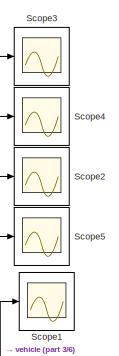
[diagram: root canvas - part 1/6, top right region]
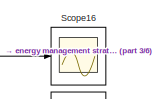
[diagram: root canvas - part 2/6, top center region]
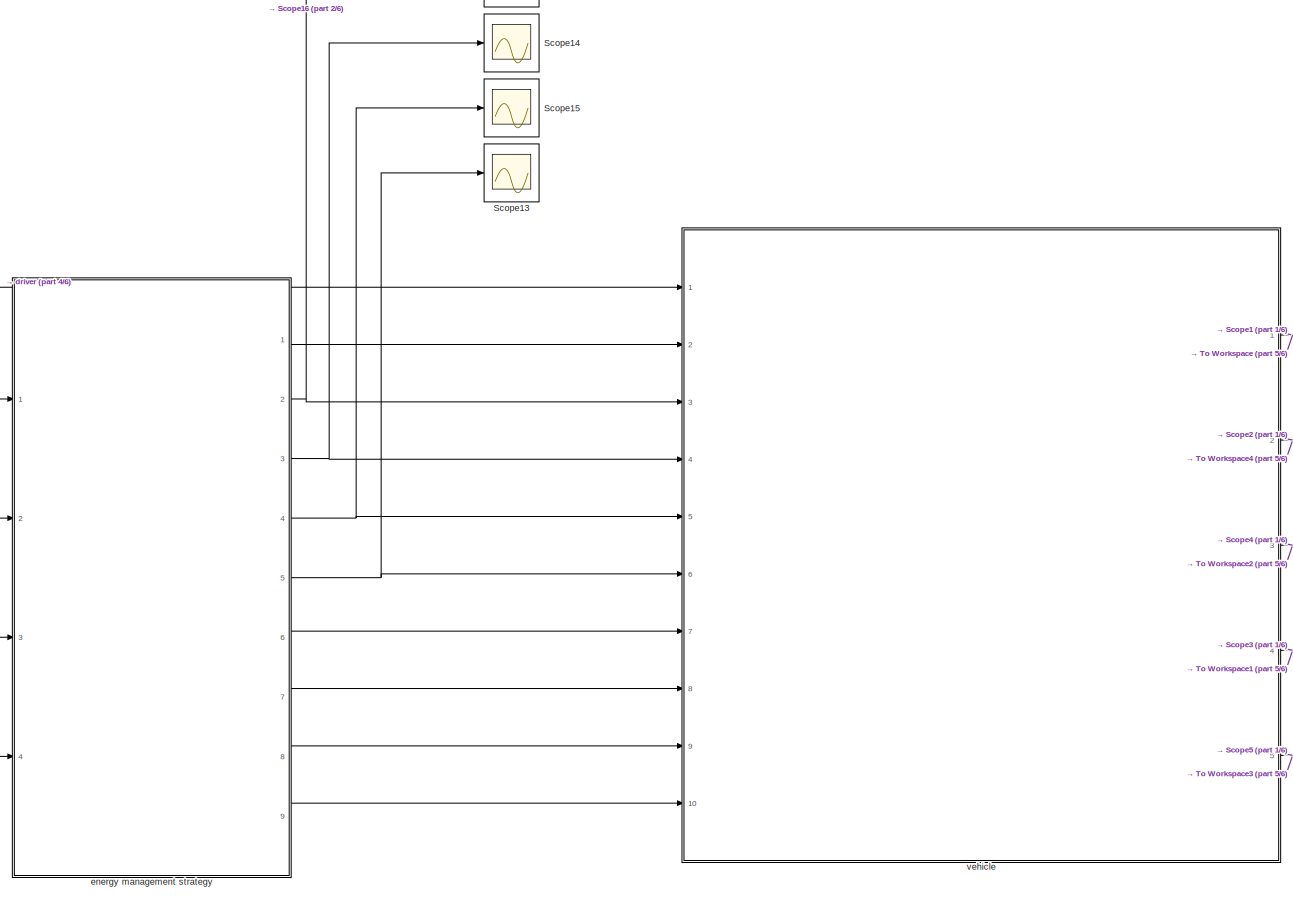
[diagram: root canvas - part 3/6, middle right region]
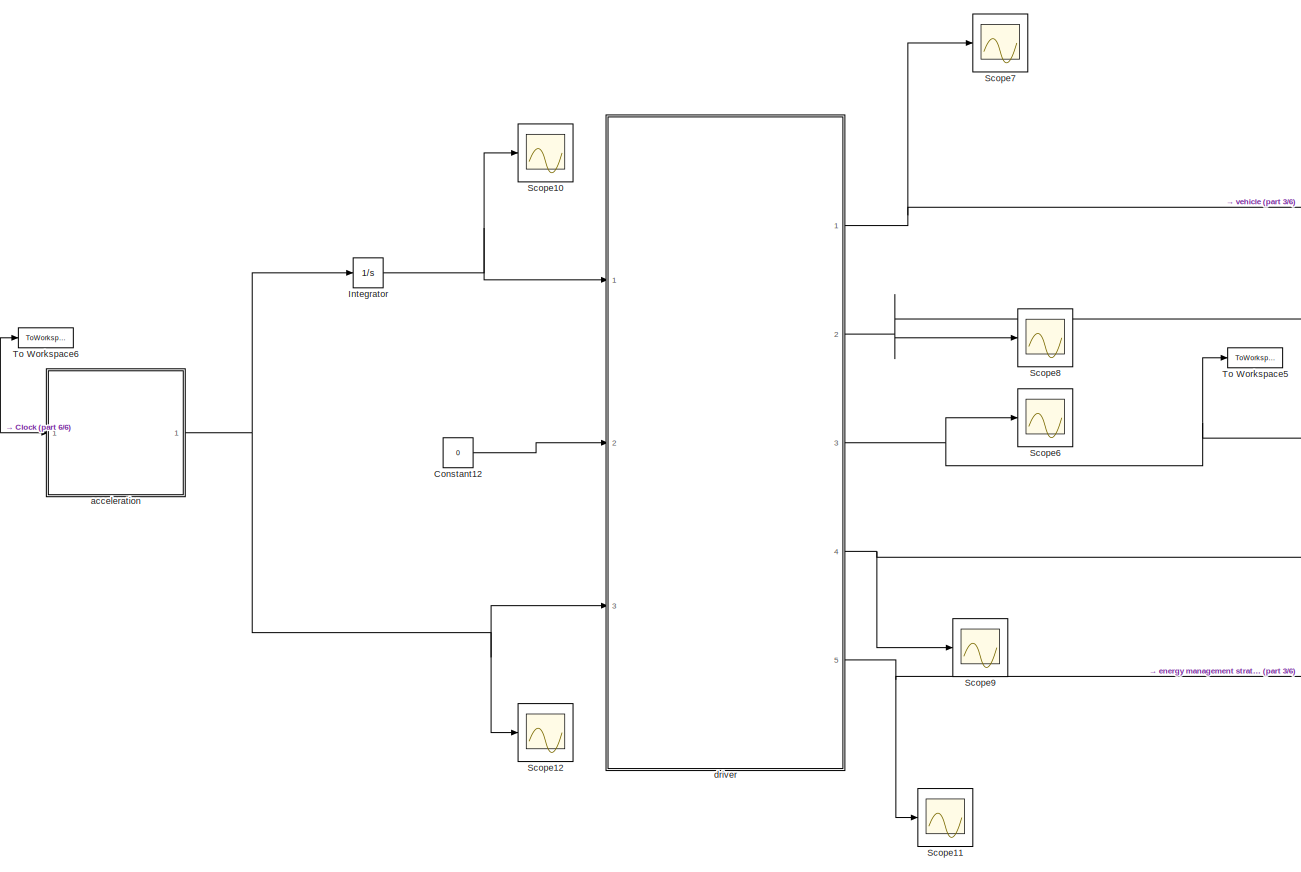
[diagram: root canvas - part 4/6, middle left region]
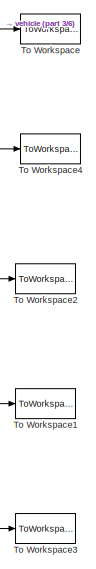
[diagram: root canvas - part 5/6, bottom right region]
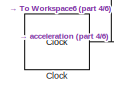
[diagram: root canvas - part 6/6, middle left region]
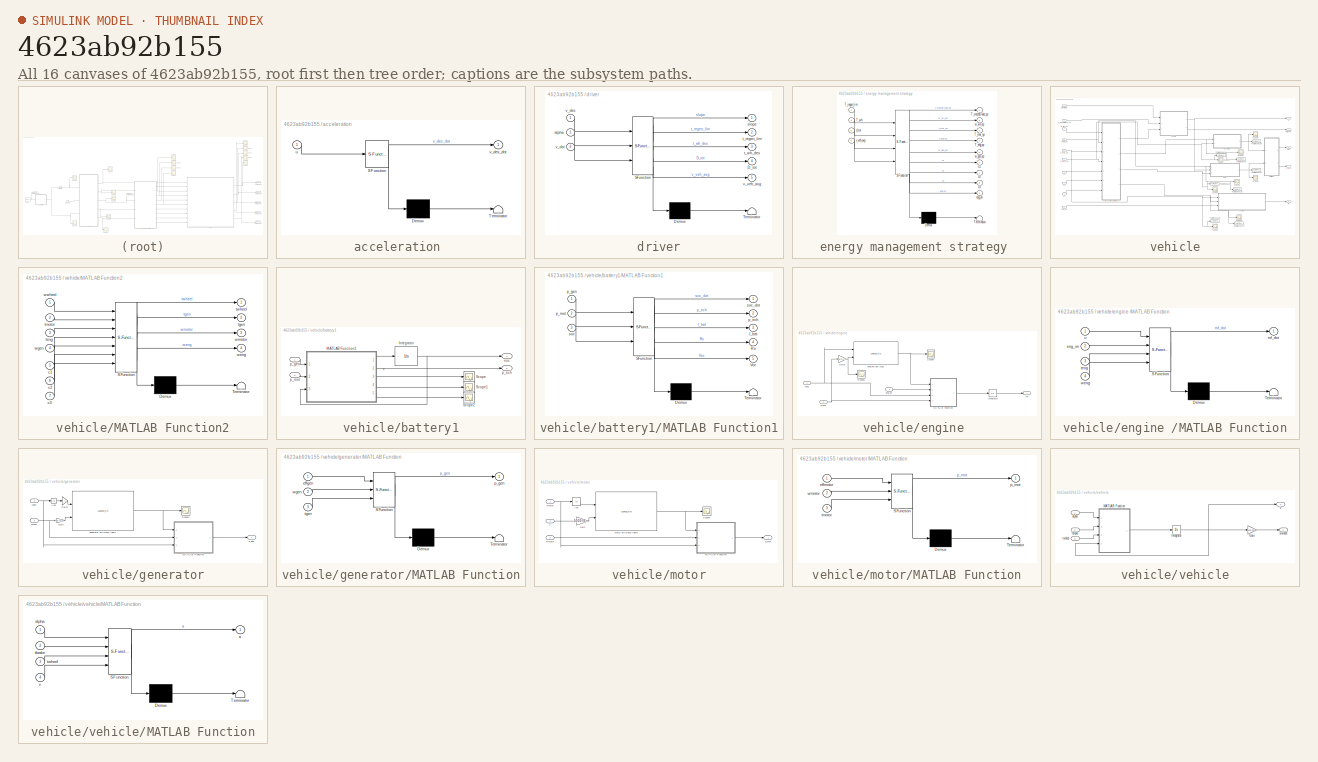
[diagram: thumbnail index - all 16 canvases of the model, root first then tree order]
MODEL slx_4623ab92b155
KIND model
CONFIG AbsTol = auto
CONFIG EnableMultiTasking = off
CONFIG FixedStep = auto
CONFIG MaxStep = auto
CONFIG MinStep = auto
CONFIG RelTol = 1e-3
CONFIG SampleTimeConstraint = Unconstrained
CONFIG Solver = VariableStepAuto
CONFIG SolverName = VariableStepAuto
CONFIG StartTime = 0.0
CONFIG StopTime = 500
BLOCK [Clock] Clock
  Decimation = 1
BLOCK [Constant] Constant12
  Value = 0
BLOCK [Integrator] Integrator
  Ports = [1, 1]
BLOCK [Scope] Scope1
  Floating = off
  NumInputPorts = 1
  Ports = [1]
  ScopeSpecificationString = Simulink.scopes.TimeScopeBlockCfg('CurrentConfiguration', extmgr.ConfigurationSet(extmgr.Configuration('Core','General UI',true),extmgr.Configuration('Core','Source UI',true),extmgr.Configuration('Sources','WiredSimulink',true,'DataLoggingVariableName','ScopeData1'),extmgr.Configuration('Visuals','Time Domain',true,'SerializedDisplays',{struct('MinYLimReal','-6.25001','MaxYLimReal','56.25005','YLa...<+1370ch>
BLOCK [Scope] Scope10
  Floating = off
  NumInputPorts = 1
  Ports = [1]
  ScopeSpecificationString = Simulink.scopes.TimeScopeBlockCfg('CurrentConfiguration', extmgr.ConfigurationSet(extmgr.Configuration('Core','General UI',true),extmgr.Configuration('Core','Source UI',true),extmgr.Configuration('Sources','WiredSimulink',true,'DataLoggingVariableName','ScopeData3'),extmgr.Configuration('Visuals','Time Domain',true,'SerializedDisplays',{struct('MinYLimReal','-6.25001','MaxYLimReal','56.25005','YLa...<+1371ch>
BLOCK [Scope] Scope11
  Floating = off
  NumInputPorts = 1
  Ports = [1]
  ScopeSpecificationString = Simulink.scopes.TimeScopeBlockCfg('CurrentConfiguration', extmgr.ConfigurationSet(extmgr.Configuration('Core','General UI',true),extmgr.Configuration('Core','Source UI',true),extmgr.Configuration('Sources','WiredSimulink',true,'DataLoggingVariableName','ScopeData4'),extmgr.Configuration('Visuals','Time Domain',true,'SerializedDisplays',{struct('MinYLimReal','-3.12529','MaxYLimReal','28.12759','YLa...<+1377ch>
BLOCK [Scope] Scope12
  Floating = off
  NumInputPorts = 1
  Ports = [1]
  ScopeSpecificationString = Simulink.scopes.TimeScopeBlockCfg('CurrentConfiguration', extmgr.ConfigurationSet(extmgr.Configuration('Core','General UI',true),extmgr.Configuration('Core','Source UI',true),extmgr.Configuration('Sources','WiredSimulink',true,'DataLoggingVariableName','ScopeData5'),extmgr.Configuration('Visuals','Time Domain',true,'SerializedDisplays',{struct('MinYLimReal','0.01879','MaxYLimReal','1.10902','YLabe...<+1368ch>
BLOCK [Scope] Scope13
  Floating = off
  NumInputPorts = 1
  Ports = [1]
  ScopeSpecificationString = Simulink.scopes.TimeScopeBlockCfg('CurrentConfiguration', extmgr.ConfigurationSet(extmgr.Configuration('Core','General UI',true),extmgr.Configuration('Core','Source UI',true),extmgr.Configuration('Sources','WiredSimulink',true,'DataLoggingVariableName','ScopeData6'),extmgr.Configuration('Visuals','Time Domain',true,'SerializedDisplays',{struct('MinYLimReal','-1.00000','MaxYLimReal','1.00000','YLab...<+1393ch>
BLOCK [Scope] Scope14
  Floating = off
  NumInputPorts = 1
  Ports = [1]
  ScopeSpecificationString = Simulink.scopes.TimeScopeBlockCfg('CurrentConfiguration', extmgr.ConfigurationSet(extmgr.Configuration('Core','General UI',true),extmgr.Configuration('Core','Source UI',true),extmgr.Configuration('Sources','WiredSimulink',true,'DataLoggingVariableName','ScopeData7'),extmgr.Configuration('Visuals','Time Domain',true,'SerializedDisplays',{struct('MinYLimReal','-36.61823','MaxYLimReal','507.56904','Y...<+1403ch>
BLOCK [Scope] Scope15
  Floating = off
  NumInputPorts = 1
  Ports = [1]
  ScopeSpecificationString = Simulink.scopes.TimeScopeBlockCfg('CurrentConfiguration', extmgr.ConfigurationSet(extmgr.Configuration('Core','General UI',true),extmgr.Configuration('Core','Source UI',true),extmgr.Configuration('Sources','WiredSimulink',true,'DataLoggingVariableName','ScopeData8'),extmgr.Configuration('Visuals','Time Domain',true,'SerializedDisplays',{struct('MinYLimReal','-1.00000','MaxYLimReal','1.00000','YLab...<+1393ch>
BLOCK [Scope] Scope16
  Floating = off
  NumInputPorts = 1
  Ports = [1]
  ScopeSpecificationString = Simulink.scopes.TimeScopeBlockCfg('CurrentConfiguration', extmgr.ConfigurationSet(extmgr.Configuration('Core','General UI',true),extmgr.Configuration('Core','Source UI',true),extmgr.Configuration('Sources','WiredSimulink',true,'DataLoggingVariableName','ScopeData9'),extmgr.Configuration('Visuals','Time Domain',true,'SerializedDisplays',{struct('MinYLimReal','-9.4697','MaxYLimReal','85.22731','YLab...<+1394ch>
BLOCK [Scope] Scope2
  Floating = off
  NumInputPorts = 1
  Ports = [1]
  ScopeSpecificationString = Simulink.scopes.TimeScopeBlockCfg('CurrentConfiguration', extmgr.ConfigurationSet(extmgr.Configuration('Core','General UI',true),extmgr.Configuration('Core','Source UI',true),extmgr.Configuration('Sources','WiredSimulink',true,'DataLoggingVariableName','ScopeData2'),extmgr.Configuration('Visuals','Time Domain',true,'SerializedDisplays',{struct('MinYLimReal','-18.93941','MaxYLimReal','170.45469','Y...<+1376ch>
BLOCK [Scope] Scope3
  Floating = off
  NumInputPorts = 1
  Ports = [1]
  ScopeSpecificationString = Simulink.scopes.TimeScopeBlockCfg('CurrentConfiguration', extmgr.ConfigurationSet(extmgr.Configuration('Core','General UI',true),extmgr.Configuration('Core','Source UI',true),extmgr.Configuration('Sources','WiredSimulink',true,'DataLoggingVariableName','ScopeData3'),extmgr.Configuration('Visuals','Time Domain',true,'SerializedDisplays',{struct('MinYLimReal','-46197.41687','MaxYLimReal','199944.776...<+1446ch>
BLOCK [Scope] Scope4
  Floating = off
  NumInputPorts = 1
  Ports = [1]
  ScopeSpecificationString = Simulink.scopes.TimeScopeBlockCfg('CurrentConfiguration', extmgr.ConfigurationSet(extmgr.Configuration('Core','General UI',true),extmgr.Configuration('Core','Source UI',true),extmgr.Configuration('Sources','WiredSimulink',true,'DataLoggingVariableName','ScopeData4'),extmgr.Configuration('Visuals','Time Domain',true,'SerializedDisplays',{struct('MinYLimReal','0.85','MaxYLimReal','1.05','YLabelReal'...<+1382ch>
BLOCK [Scope] Scope5
  Floating = off
  NumInputPorts = 1
  Ports = [1]
  ScopeSpecificationString = Simulink.scopes.TimeScopeBlockCfg('CurrentConfiguration', extmgr.ConfigurationSet(extmgr.Configuration('Core','General UI',true),extmgr.Configuration('Core','Source UI',true),extmgr.Configuration('Sources','WiredSimulink',true,'DataLoggingVariableName','ScopeData5'),extmgr.Configuration('Visuals','Time Domain',true,'SerializedDisplays',{struct('MinYLimReal','-100.56037','MaxYLimReal','905.04329','...<+1380ch>
BLOCK [Scope] Scope6
  Floating = off
  NumInputPorts = 1
  Ports = [1]
  ScopeSpecificationString = Simulink.scopes.TimeScopeBlockCfg('CurrentConfiguration', extmgr.ConfigurationSet(extmgr.Configuration('Core','General UI',true),extmgr.Configuration('Core','Source UI',true),extmgr.Configuration('Sources','WiredSimulink',true,'DataLoggingVariableName','ScopeData6'),extmgr.Configuration('Visuals','Time Domain',true,'SerializedDisplays',{struct('MinYLimReal','517.25976','MaxYLimReal','1281.31529','...<+1390ch>
BLOCK [Scope] Scope7
  Floating = off
  NumInputPorts = 1
  Ports = [1]
  ScopeSpecificationString = Simulink.scopes.TimeScopeBlockCfg('CurrentConfiguration', extmgr.ConfigurationSet(extmgr.Configuration('Core','General UI',true),extmgr.Configuration('Core','Source UI',true),extmgr.Configuration('Sources','WiredSimulink',true,'DataLoggingVariableName','ScopeData7'),extmgr.Configuration('Visuals','Time Domain',true,'SerializedDisplays',{struct('MinYLimReal','-1.00000','MaxYLimReal','1.00000','YLab...<+1369ch>
BLOCK [Scope] Scope8
  Floating = off
  NumInputPorts = 1
  Ports = [1]
  ScopeSpecificationString = Simulink.scopes.TimeScopeBlockCfg('CurrentConfiguration', extmgr.ConfigurationSet(extmgr.Configuration('Core','General UI',true),extmgr.Configuration('Core','Source UI',true),extmgr.Configuration('Sources','WiredSimulink',true,'DataLoggingVariableName','ScopeData8'),extmgr.Configuration('Visuals','Time Domain',true,'SerializedDisplays',{struct('MinYLimReal','-1.00000','MaxYLimReal','1.00000','YLab...<+1375ch>
BLOCK [Scope] Scope9
  Floating = off
  NumInputPorts = 1
  Ports = [1]
  ScopeSpecificationString = Simulink.scopes.TimeScopeBlockCfg('CurrentConfiguration', extmgr.ConfigurationSet(extmgr.Configuration('Core','General UI',true),extmgr.Configuration('Core','Source UI',true),extmgr.Configuration('Sources','WiredSimulink',true,'DataLoggingVariableName','ScopeData9'),extmgr.Configuration('Visuals','Time Domain',true,'SerializedDisplays',{struct('MinYLimReal','-1.00000','MaxYLimReal','1.00000','YLab...<+1371ch>
BLOCK [ToWorkspace] To Workspace
  FixptAsFi = on
  MaxDataPoints = inf
  Ports = [1]
  SampleTime = -1
  Save2DSignal = 3-D array (concatenate along third dimension)
  SaveFormat = Timeseries
  VariableName = v
BLOCK [ToWorkspace] To Workspace1
  FixptAsFi = on
  MaxDataPoints = inf
  Ports = [1]
  SampleTime = -1
  Save2DSignal = 3-D array (concatenate along third dimension)
  SaveFormat = Timeseries
  VariableName = pech
BLOCK [ToWorkspace] To Workspace2
  FixptAsFi = on
  MaxDataPoints = inf
  Ports = [1]
  SampleTime = -1
  Save2DSignal = 3-D array (concatenate along third dimension)
  SaveFormat = Timeseries
  VariableName = soc
BLOCK [ToWorkspace] To Workspace3
  FixptAsFi = on
  MaxDataPoints = inf
  Ports = [1]
  SampleTime = -1
  Save2DSignal = 3-D array (concatenate along third dimension)
  SaveFormat = Timeseries
  VariableName = mf
BLOCK [ToWorkspace] To Workspace4
  FixptAsFi = on
  MaxDataPoints = inf
  Ports = [1]
  SampleTime = -1
  Save2DSignal = 3-D array (concatenate along third dimension)
  SaveFormat = Timeseries
  VariableName = wwh
BLOCK [ToWorkspace] To Workspace5
  FixptAsFi = on
  MaxDataPoints = inf
  Ports = [1]
  SampleTime = -1
  Save2DSignal = 3-D array (concatenate along third dimension)
  SaveFormat = Timeseries
  VariableName = twh
BLOCK [ToWorkspace] To Workspace6
  FixptAsFi = on
  MaxDataPoints = inf
  Ports = [1]
  SampleTime = -1
  Save2DSignal = 3-D array (concatenate along third dimension)
  SaveFormat = Timeseries
  VariableName = t
BLOCK [SubSystem] acceleration 
  ErrorFcn = Stateflow.Translate.translate
  PermitHierarchicalResolution = ExplicitOnly
  Ports = [1, 1]
  RequestExecContextInheritance = off
  SFBlockType = MATLAB Function
  TreatAsAtomicUnit = on
BLOCK [Demux] acceleration / Demux 
  Outputs = 1
  Ports = [1, 1]
BLOCK [S-Function] acceleration / SFunction 
  EnableBusSupport = on
  FunctionName = sf_sfun
  PortCounts = [1 2]
  Ports = [1, 2]
  SFcnIsStateOwnerBlock = off
  SFunctionDeploymentMode = off
  Tag = Stateflow S-Function simulator_3 8
BLOCK [Terminator] acceleration / Terminator 
BLOCK [Inport] acceleration /u
  IconDisplay = Port number
BLOCK [Outport] acceleration /v_des_dot
  IconDisplay = Port number
BLOCK [SubSystem] driver
  ErrorFcn = Stateflow.Translate.translate
  PermitHierarchicalResolution = ExplicitOnly
  Ports = [3, 5]
  RequestExecContextInheritance = off
  SFBlockType = MATLAB Function
  TreatAsAtomicUnit = on
BLOCK [Demux] driver/ Demux 
  Outputs = 1
  Ports = [1, 1]
BLOCK [S-Function] driver/ SFunction 
  EnableBusSupport = on
  FunctionName = sf_sfun
  PortCounts = [3 6]
  Ports = [3, 6]
  SFcnIsStateOwnerBlock = off
  SFunctionDeploymentMode = off
  Tag = Stateflow S-Function simulator_3 4
BLOCK [Terminator] driver/ Terminator 
BLOCK [Outport] driver/D_tot
  IconDisplay = Port number
  Port = 4
BLOCK [Inport] driver/alpha
  IconDisplay = Port number
  Port = 2
BLOCK [Outport] driver/slope
  IconDisplay = Port number
BLOCK [Outport] driver/t_regen_lim
  IconDisplay = Port number
  Port = 2
BLOCK [Outport] driver/t_wh_des
  IconDisplay = Port number
  Port = 3
BLOCK [Inport] driver/v_des
  IconDisplay = Port number
BLOCK [Inport] driver/v_dot
  IconDisplay = Port number
  Port = 3
BLOCK [Outport] driver/v_veh_avg
  IconDisplay = Port number
  Port = 5
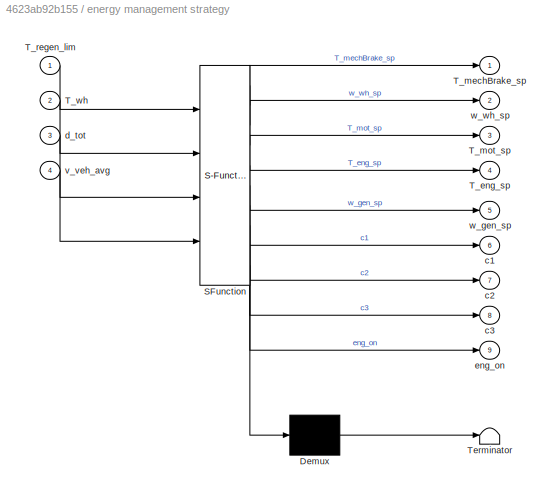
BLOCK [SubSystem] energy management strategy 
  ErrorFcn = Stateflow.Translate.translate
  PermitHierarchicalResolution = ExplicitOnly
  Ports = [4, 9]
  RequestExecContextInheritance = off
  SFBlockType = MATLAB Function
  TreatAsAtomicUnit = on
BLOCK [Demux] energy management strategy / Demux 
  Outputs = 1
  Ports = [1, 1]
BLOCK [S-Function] energy management strategy / SFunction 
  EnableBusSupport = on
  FunctionName = sf_sfun
  PortCounts = [4 10]
  Ports = [4, 10]
  SFcnIsStateOwnerBlock = off
  SFunctionDeploymentMode = off
  Tag = Stateflow S-Function simulator_3 6
BLOCK [Terminator] energy management strategy / Terminator 
BLOCK [Outport] energy management strategy /T_eng_sp
  IconDisplay = Port number
  Port = 4
BLOCK [Outport] energy management strategy /T_mechBrake_sp
  IconDisplay = Port number
BLOCK [Outport] energy management strategy /T_mot_sp
  IconDisplay = Port number
  Port = 3
BLOCK [Inport] energy management strategy /T_regen_lim
  IconDisplay = Port number
BLOCK [Inport] energy management strategy /T_wh
  IconDisplay = Port number
  Port = 2
BLOCK [Outport] energy management strategy /c1
  IconDisplay = Port number
  Port = 6
BLOCK [Outport] energy management strategy /c2
  IconDisplay = Port number
  Port = 7
BLOCK [Outport] energy management strategy /c3
  IconDisplay = Port number
  Port = 8
BLOCK [Inport] energy management strategy /d_tot
  IconDisplay = Port number
  Port = 3
BLOCK [Outport] energy management strategy /eng_on
  IconDisplay = Port number
  Port = 9
BLOCK [Inport] energy management strategy /v_veh_avg
  IconDisplay = Port number
  Port = 4
BLOCK [Outport] energy management strategy /w_gen_sp
  IconDisplay = Port number
  Port = 5
BLOCK [Outport] energy management strategy /w_wh_sp
  IconDisplay = Port number
  Port = 2
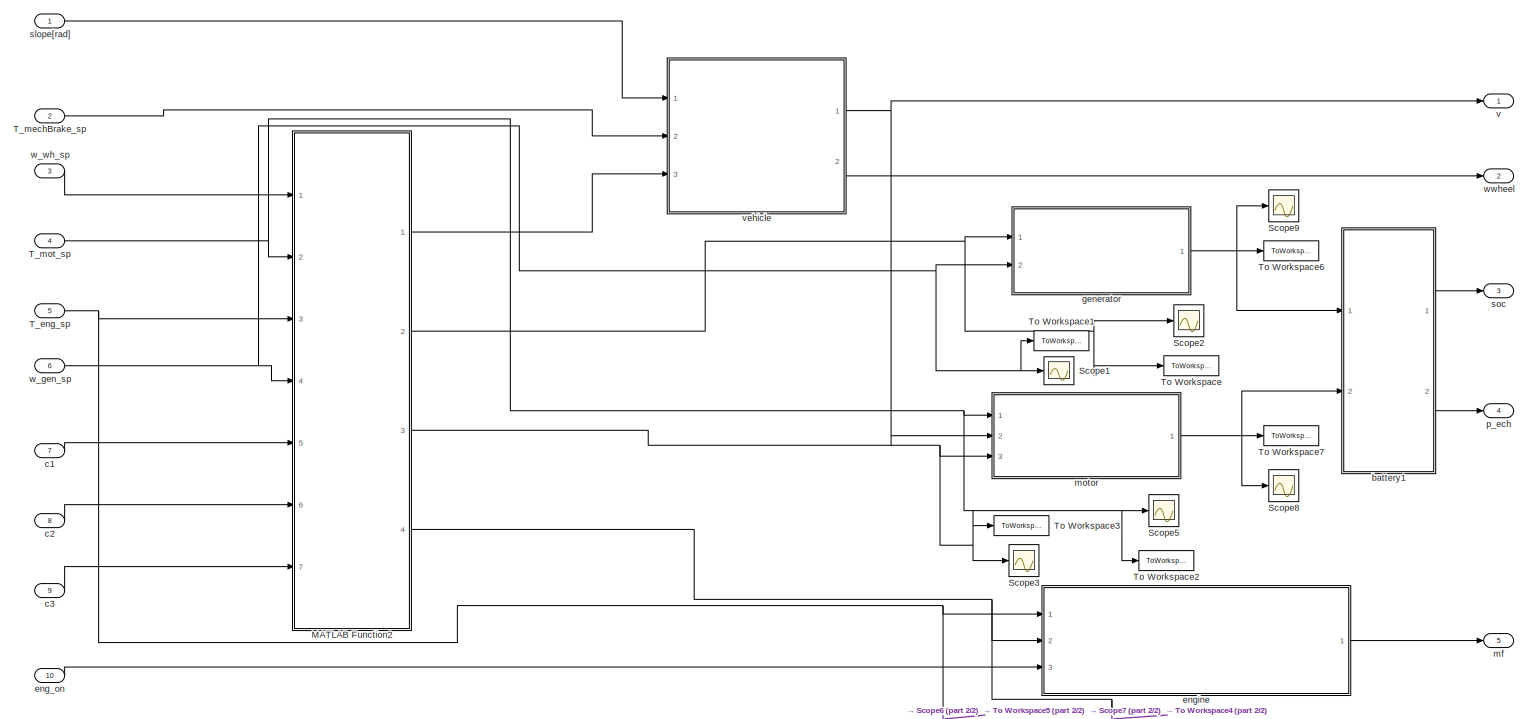
[diagram: vehicle - part 1/2, most of the canvas]
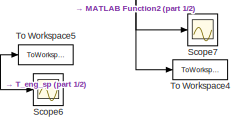
[diagram: vehicle - part 2/2, bottom right region]
BLOCK [SubSystem] vehicle
  Ports = [10, 5]
  RequestExecContextInheritance = off
BLOCK [SubSystem] vehicle/MATLAB Function2
  ErrorFcn = Stateflow.Translate.translate
  PermitHierarchicalResolution = ExplicitOnly
  Ports = [7, 4]
  RequestExecContextInheritance = off
  SFBlockType = MATLAB Function
  TreatAsAtomicUnit = on
BLOCK [Demux] vehicle/MATLAB Function2/ Demux 
  Outputs = 1
  Ports = [1, 1]
BLOCK [S-Function] vehicle/MATLAB Function2/ SFunction 
  EnableBusSupport = on
  FunctionName = sf_sfun
  PortCounts = [7 5]
  Ports = [7, 5]
  SFcnIsStateOwnerBlock = off
  SFunctionDeploymentMode = off
  Tag = Stateflow S-Function simulator_3 3
BLOCK [Terminator] vehicle/MATLAB Function2/ Terminator 
BLOCK [Inport] vehicle/MATLAB Function2/c1
  IconDisplay = Port number
  Port = 5
BLOCK [Inport] vehicle/MATLAB Function2/c2
  IconDisplay = Port number
  Port = 6
BLOCK [Inport] vehicle/MATLAB Function2/c3
  IconDisplay = Port number
  Port = 7
BLOCK [Inport] vehicle/MATLAB Function2/teng
  IconDisplay = Port number
  Port = 3
BLOCK [Outport] vehicle/MATLAB Function2/tgen
  IconDisplay = Port number
  Port = 2
BLOCK [Inport] vehicle/MATLAB Function2/tmotor
  IconDisplay = Port number
  Port = 2
BLOCK [Outport] vehicle/MATLAB Function2/twheel
  IconDisplay = Port number
BLOCK [Outport] vehicle/MATLAB Function2/weng
  IconDisplay = Port number
  Port = 4
BLOCK [Inport] vehicle/MATLAB Function2/wgen
  IconDisplay = Port number
  Port = 4
BLOCK [Outport] vehicle/MATLAB Function2/wmotor
  IconDisplay = Port number
  Port = 3
BLOCK [Inport] vehicle/MATLAB Function2/wwheel
  IconDisplay = Port number
BLOCK [Scope] vehicle/Scope1
  Floating = off
  NumInputPorts = 1
  Ports = [1]
  ScopeSpecificationString = Simulink.scopes.TimeScopeBlockCfg('CurrentConfiguration', extmgr.ConfigurationSet(extmgr.Configuration('Core','General UI',true),extmgr.Configuration('Core','Source UI',true),extmgr.Configuration('Sources','WiredSimulink',true,'DataLoggingVariableName','ScopeData10'),extmgr.Configuration('Visuals','Time Domain',true,'SerializedDisplays',{struct('MinYLimReal','150.00000','MaxYLimReal','350.00000','...<+1380ch>
BLOCK [Scope] vehicle/Scope2
  Floating = off
  NumInputPorts = 1
  Ports = [1]
  ScopeSpecificationString = Simulink.scopes.TimeScopeBlockCfg('CurrentConfiguration', extmgr.ConfigurationSet(extmgr.Configuration('Core','General UI',true),extmgr.Configuration('Core','Source UI',true),extmgr.Configuration('Sources','WiredSimulink',true,'DataLoggingVariableName','ScopeData11'),extmgr.Configuration('Visuals','Time Domain',true,'SerializedDisplays',{struct('MinYLimReal','-105.00000','MaxYLimReal','-85.00000',...<+1393ch>
BLOCK [Scope] vehicle/Scope3
  Floating = off
  NumInputPorts = 1
  Ports = [1]
  ScopeSpecificationString = Simulink.scopes.TimeScopeBlockCfg('CurrentConfiguration', extmgr.ConfigurationSet(extmgr.Configuration('Core','General UI',true),extmgr.Configuration('Core','Source UI',true),extmgr.Configuration('Sources','WiredSimulink',true,'DataLoggingVariableName','ScopeData12'),extmgr.Configuration('Visuals','Time Domain',true,'SerializedDisplays',{struct('MinYLimReal','-132.54557','MaxYLimReal','1192.91009'...<+1399ch>
BLOCK [Scope] vehicle/Scope5
  Floating = off
  NumInputPorts = 1
  Ports = [1]
  ScopeSpecificationString = Simulink.scopes.TimeScopeBlockCfg('CurrentConfiguration', extmgr.ConfigurationSet(extmgr.Configuration('Core','General UI',true),extmgr.Configuration('Core','Source UI',true),extmgr.Configuration('Sources','WiredSimulink',true,'DataLoggingVariableName','ScopeData13'),extmgr.Configuration('Visuals','Time Domain',true,'SerializedDisplays',{struct('MinYLimReal','6.56016','MaxYLimReal','502.77144','YL...<+1372ch>
BLOCK [Scope] vehicle/Scope6
  Floating = off
  NumInputPorts = 1
  Ports = [1]
  ScopeSpecificationString = Simulink.scopes.TimeScopeBlockCfg('CurrentConfiguration', extmgr.ConfigurationSet(extmgr.Configuration('Core','General UI',true),extmgr.Configuration('Core','Source UI',true),extmgr.Configuration('Sources','WiredSimulink',true,'DataLoggingVariableName','ScopeData15'),extmgr.Configuration('Visuals','Time Domain',true,'SerializedDisplays',{struct('MinYLimReal','85.00000','MaxYLimReal','105.00000','Y...<+1376ch>
BLOCK [Scope] vehicle/Scope7
  Floating = off
  NumInputPorts = 1
  Ports = [1]
  ScopeSpecificationString = Simulink.scopes.TimeScopeBlockCfg('CurrentConfiguration', extmgr.ConfigurationSet(extmgr.Configuration('Core','General UI',true),extmgr.Configuration('Core','Source UI',true),extmgr.Configuration('Sources','WiredSimulink',true,'DataLoggingVariableName','ScopeData16'),extmgr.Configuration('Visuals','Time Domain',true,'SerializedDisplays',{struct('MinYLimReal','150.00000','MaxYLimReal','350.00000','...<+1393ch>
BLOCK [Scope] vehicle/Scope8
  Floating = off
  NumInputPorts = 1
  Ports = [1]
  ScopeSpecificationString = Simulink.scopes.TimeScopeBlockCfg('CurrentConfiguration', extmgr.ConfigurationSet(extmgr.Configuration('Core','General UI',true),extmgr.Configuration('Core','Source UI',true),extmgr.Configuration('Sources','WiredSimulink',true,'DataLoggingVariableName','ScopeData18'),extmgr.Configuration('Visuals','Time Domain',true,'SerializedDisplays',{struct('MinYLimReal','-1715.37575','MaxYLimReal','15438.3817...<+1389ch>
BLOCK [Scope] vehicle/Scope9
  Floating = off
  NumInputPorts = 1
  Ports = [1]
  ScopeSpecificationString = Simulink.scopes.TimeScopeBlockCfg('CurrentConfiguration', extmgr.ConfigurationSet(extmgr.Configuration('Core','General UI',true),extmgr.Configuration('Core','Source UI',true),extmgr.Configuration('Sources','WiredSimulink',true,'DataLoggingVariableName','ScopeData19'),extmgr.Configuration('Visuals','Time Domain',true,'SerializedDisplays',{struct('MinYLimReal','-31797.05414','MaxYLimReal','-11797.05...<+1399ch>
BLOCK [Inport] vehicle/T_eng_sp
  IconDisplay = Port number
  Port = 5
BLOCK [Inport] vehicle/T_mechBrake_sp
  IconDisplay = Port number
  Port = 2
BLOCK [Inport] vehicle/T_mot_sp
  IconDisplay = Port number
  Port = 4
BLOCK [ToWorkspace] vehicle/To Workspace
  FixptAsFi = on
  MaxDataPoints = inf
  Ports = [1]
  SampleTime = -1
  Save2DSignal = 3-D array (concatenate along third dimension)
  SaveFormat = Timeseries
  VariableName = tg
BLOCK [ToWorkspace] vehicle/To Workspace1
  FixptAsFi = on
  MaxDataPoints = inf
  Ports = [1]
  SampleTime = -1
  Save2DSignal = 3-D array (concatenate along third dimension)
  SaveFormat = Timeseries
  VariableName = wg
BLOCK [ToWorkspace] vehicle/To Workspace2
  FixptAsFi = on
  MaxDataPoints = inf
  Ports = [1]
  SampleTime = -1
  Save2DSignal = 3-D array (concatenate along third dimension)
  SaveFormat = Timeseries
  VariableName = tm
BLOCK [ToWorkspace] vehicle/To Workspace3
  FixptAsFi = on
  MaxDataPoints = inf
  Ports = [1]
  SampleTime = -1
  Save2DSignal = 3-D array (concatenate along third dimension)
  SaveFormat = Timeseries
  VariableName = wm
BLOCK [ToWorkspace] vehicle/To Workspace4
  FixptAsFi = on
  MaxDataPoints = inf
  Ports = [1]
  SampleTime = -1
  Save2DSignal = 3-D array (concatenate along third dimension)
  SaveFormat = Timeseries
  VariableName = we
BLOCK [ToWorkspace] vehicle/To Workspace5
  FixptAsFi = on
  MaxDataPoints = inf
  Ports = [1]
  SampleTime = -1
  Save2DSignal = 3-D array (concatenate along third dimension)
  SaveFormat = Timeseries
  VariableName = te
BLOCK [ToWorkspace] vehicle/To Workspace6
  FixptAsFi = on
  MaxDataPoints = inf
  Ports = [1]
  SampleTime = -1
  Save2DSignal = 3-D array (concatenate along third dimension)
  SaveFormat = Timeseries
  VariableName = pg
BLOCK [ToWorkspace] vehicle/To Workspace7
  FixptAsFi = on
  MaxDataPoints = inf
  Ports = [1]
  SampleTime = -1
  Save2DSignal = 3-D array (concatenate along third dimension)
  SaveFormat = Timeseries
  VariableName = pm
BLOCK [SubSystem] vehicle/battery1
  Ports = [2, 2]
  RequestExecContextInheritance = off
BLOCK [Integrator] vehicle/battery1/Integrator
  InitialCondition = 0.95
  LimitOutput = on
  LowerSaturationLimit = 0.3
  Ports = [1, 1]
  UpperSaturationLimit = 0.95
BLOCK [SubSystem] vehicle/battery1/MATLAB Function1
  ErrorFcn = Stateflow.Translate.translate
  PermitHierarchicalResolution = ExplicitOnly
  Ports = [3, 5]
  RequestExecContextInheritance = off
  SFBlockType = MATLAB Function
  TreatAsAtomicUnit = on
BLOCK [Demux] vehicle/battery1/MATLAB Function1/ Demux 
  Outputs = 1
  Ports = [1, 1]
BLOCK [S-Function] vehicle/battery1/MATLAB Function1/ SFunction 
  EnableBusSupport = on
  FunctionName = sf_sfun
  PortCounts = [3 6]
  Ports = [3, 6]
  SFcnIsStateOwnerBlock = off
  SFunctionDeploymentMode = off
  Tag = Stateflow S-Function simulator_3 9
BLOCK [Terminator] vehicle/battery1/MATLAB Function1/ Terminator 
BLOCK [Outport] vehicle/battery1/MATLAB Function1/I_bat
  IconDisplay = Port number
  Port = 3
BLOCK [Outport] vehicle/battery1/MATLAB Function1/Ro
  IconDisplay = Port number
  Port = 4
BLOCK [Outport] vehicle/battery1/MATLAB Function1/Voc
  IconDisplay = Port number
  Port = 5
BLOCK [Outport] vehicle/battery1/MATLAB Function1/p_ech
  IconDisplay = Port number
  Port = 2
BLOCK [Inport] vehicle/battery1/MATLAB Function1/p_gen
  IconDisplay = Port number
BLOCK [Inport] vehicle/battery1/MATLAB Function1/p_mot
  IconDisplay = Port number
  Port = 2
BLOCK [Inport] vehicle/battery1/MATLAB Function1/soc
  IconDisplay = Port number
  Port = 3
BLOCK [Outport] vehicle/battery1/MATLAB Function1/soc_dot
  IconDisplay = Port number
BLOCK [Scope] vehicle/battery1/Scope
  Floating = off
  NumInputPorts = 1
  Ports = [1]
  ScopeSpecificationString = Simulink.scopes.TimeScopeBlockCfg('CurrentConfiguration', extmgr.ConfigurationSet(extmgr.Configuration('Core','General UI',true),extmgr.Configuration('Core','Source UI',true),extmgr.Configuration('Sources','WiredSimulink',true,'DataLoggingVariableName','ScopeData1'),extmgr.Configuration('Visuals','Time Domain',true,'SerializedDisplays',{struct('MinYLimReal','80.13091','MaxYLimReal','440.91294','YL...<+1433ch>
BLOCK [Scope] vehicle/battery1/Scope1
  Floating = off
  NumInputPorts = 1
  Ports = [1]
  ScopeSpecificationString = Simulink.scopes.TimeScopeBlockCfg('CurrentConfiguration', extmgr.ConfigurationSet(extmgr.Configuration('Core','General UI',true),extmgr.Configuration('Core','Source UI',true),extmgr.Configuration('Sources','WiredSimulink',true,'DataLoggingVariableName','ScopeData2'),extmgr.Configuration('Visuals','Time Domain',true,'SerializedDisplays',{struct('MinYLimReal','0.054','MaxYLimReal','0.074','YLabelRea...<+1426ch>
BLOCK [Scope] vehicle/battery1/Scope2
  Floating = off
  NumInputPorts = 1
  Ports = [1]
  ScopeSpecificationString = Simulink.scopes.TimeScopeBlockCfg('CurrentConfiguration', extmgr.ConfigurationSet(extmgr.Configuration('Core','General UI',true),extmgr.Configuration('Core','Source UI',true),extmgr.Configuration('Sources','WiredSimulink',true,'DataLoggingVariableName','ScopeData3'),extmgr.Configuration('Visuals','Time Domain',true,'SerializedDisplays',{struct('MinYLimReal','260.00000','MaxYLimReal','460.00000','Y...<+1391ch>
BLOCK [Outport] vehicle/battery1/p_ech
  IconDisplay = Port number
  Port = 2
BLOCK [Inport] vehicle/battery1/p_gen
  IconDisplay = Port number
BLOCK [Inport] vehicle/battery1/p_mot
  IconDisplay = Port number
  Port = 2
BLOCK [Outport] vehicle/battery1/soc
  IconDisplay = Port number
BLOCK [Inport] vehicle/c1 
  IconDisplay = Port number
  Port = 7
BLOCK [Inport] vehicle/c2
  IconDisplay = Port number
  Port = 8
BLOCK [Inport] vehicle/c3
  IconDisplay = Port number
  Port = 9
BLOCK [Inport] vehicle/eng_on
  IconDisplay = Port number
  Port = 10
BLOCK [SubSystem] vehicle/engine 
  Ports = [3, 1]
  RequestExecContextInheritance = off
BLOCK [Gain] vehicle/engine /Gain1
  Gain = 60/(2*3.14)
  OutDataTypeStr = Inherit: Inherit via internal rule
  ParamDataTypeStr = Inherit: Inherit via internal rule
  SaturateOnIntegerOverflow = off
BLOCK [Integrator] vehicle/engine /Integrator
  Ports = [1, 1]
BLOCK [SubSystem] vehicle/engine /MATLAB Function
  ErrorFcn = Stateflow.Translate.translate
  PermitHierarchicalResolution = ExplicitOnly
  Ports = [4, 1]
  RequestExecContextInheritance = off
  SFBlockType = MATLAB Function
  TreatAsAtomicUnit = on
BLOCK [Demux] vehicle/engine /MATLAB Function/ Demux 
  Outputs = 1
  Ports = [1, 1]
BLOCK [S-Function] vehicle/engine /MATLAB Function/ SFunction 
  EnableBusSupport = on
  FunctionName = sf_sfun
  PortCounts = [4 2]
  Ports = [4, 2]
  SFcnIsStateOwnerBlock = off
  SFunctionDeploymentMode = off
  Tag = Stateflow S-Function simulator_3 10
BLOCK [Terminator] vehicle/engine /MATLAB Function/ Terminator 
BLOCK [Inport] vehicle/engine /MATLAB Function/eng_on
  IconDisplay = Port number
  Port = 2
BLOCK [Outport] vehicle/engine /MATLAB Function/mf_dot
  IconDisplay = Port number
BLOCK [Inport] vehicle/engine /MATLAB Function/teng
  IconDisplay = Port number
  Port = 3
BLOCK [Inport] vehicle/engine /MATLAB Function/u
  IconDisplay = Port number
BLOCK [Inport] vehicle/engine /MATLAB Function/weng
  IconDisplay = Port number
  Port = 4
BLOCK [Scope] vehicle/engine /Scope1
  Floating = off
  NumInputPorts = 1
  Ports = [1]
  ScopeSpecificationString = Simulink.scopes.TimeScopeBlockCfg('CurrentConfiguration', extmgr.ConfigurationSet(extmgr.Configuration('Core','General UI',true),extmgr.Configuration('Core','Source UI',true),extmgr.Configuration('Sources','WiredSimulink',true,'DataLoggingVariableName','ScopeData2'),extmgr.Configuration('Visuals','Time Domain',true,'SerializedDisplays',{struct('MinYLimReal','1388.53503','MaxYLimReal','3388.53503',...<+1384ch>
BLOCK [Scope] vehicle/engine /Scope7
  Floating = off
  NumInputPorts = 1
  Ports = [1]
  ScopeSpecificationString = Simulink.scopes.TimeScopeBlockCfg('CurrentConfiguration', extmgr.ConfigurationSet(extmgr.Configuration('Core','General UI',true),extmgr.Configuration('Core','Source UI',true),extmgr.Configuration('Sources','WiredSimulink',true,'DataLoggingVariableName','ScopeData1'),extmgr.Configuration('Visuals','Time Domain',true,'SerializedDisplays',{struct('MinYLimReal','143.88535','MaxYLimReal','343.88535','Y...<+1386ch>
BLOCK [Inport] vehicle/engine /eng_on
  IconDisplay = Port number
  Port = 3
BLOCK [Lookup_n-D] vehicle/engine /engine fuel map
  BreakpointsForDimension1 = [0,10,20,30,40,50,60,70,80,90,100,110,120,130,140]
  BreakpointsForDimension2 = [1000,1500,2000,2500,3000,3500,4000,4500,5000]
  BreakpointsForDimension3 = [5, 7]
  DiagnosticForOutOfRangeInput = Warning
  InternalRulePriority = Speed
  Ports = [2, 1]
  RndMeth = Simplest
  Table = reshape([0,0,0,0,0,0,0,0,0,0,0,0,0,0,0,0,0,400,330,300,280,270,260,250,250,250,0,0,0,0,0,0,400,330,300,280,270,260,250,240,240,250,0,0,0,0,0,400,330,300,280,270,250,250,250,240,240,240,0,0,0,0,400,330,300,280,270,250,250,240,240,250,250,0,0,0,0,400,330,300,280,270,260,260,260,260,260,260,260,0,0,0,400,400,300,280,270,270,270,270,270,270,270,270,0,0,0,400,400,400,330,300,300,300,300,300,300,300,300...<+39ch>
BLOCK [Outport] vehicle/engine /mf
  IconDisplay = Port number
BLOCK [Inport] vehicle/engine /teng
  IconDisplay = Port number
BLOCK [Inport] vehicle/engine /weng
  IconDisplay = Port number
  Port = 2
BLOCK [SubSystem] vehicle/generator
  Ports = [2, 1]
  RequestExecContextInheritance = off
BLOCK [Abs] vehicle/generator/Abs
  SaturateOnIntegerOverflow = off
BLOCK [Gain] vehicle/generator/Gain
  Gain = 60/(2*3.14)
  OutDataTypeStr = Inherit: Inherit via internal rule
  ParamDataTypeStr = Inherit: Inherit via internal rule
  SaturateOnIntegerOverflow = off
BLOCK [Gain] vehicle/generator/Gain1
  Gain = -1
  OutDataTypeStr = Inherit: Inherit via internal rule
  ParamDataTypeStr = Inherit: Inherit via internal rule
  SaturateOnIntegerOverflow = off
BLOCK [SubSystem] vehicle/generator/MATLAB Function
  ErrorFcn = Stateflow.Translate.translate
  PermitHierarchicalResolution = ExplicitOnly
  Ports = [3, 1]
  RequestExecContextInheritance = off
  SFBlockType = MATLAB Function
  TreatAsAtomicUnit = on
BLOCK [Demux] vehicle/generator/MATLAB Function/ Demux 
  Outputs = 1
  Ports = [1, 1]
BLOCK [S-Function] vehicle/generator/MATLAB Function/ SFunction 
  EnableBusSupport = on
  FunctionName = sf_sfun
  PortCounts = [3 2]
  Ports = [3, 2]
  SFcnIsStateOwnerBlock = off
  SFunctionDeploymentMode = off
  Tag = Stateflow S-Function simulator_3 5
BLOCK [Terminator] vehicle/generator/MATLAB Function/ Terminator 
BLOCK [Inport] vehicle/generator/MATLAB Function/effgen
  IconDisplay = Port number
BLOCK [Outport] vehicle/generator/MATLAB Function/p_gen
  IconDisplay = Port number
BLOCK [Inport] vehicle/generator/MATLAB Function/tgen
  IconDisplay = Port number
  Port = 3
BLOCK [Inport] vehicle/generator/MATLAB Function/wgen
  IconDisplay = Port number
  Port = 2
BLOCK [Scope] vehicle/generator/Scope4
  Floating = off
  NumInputPorts = 1
  Ports = [1]
  ScopeSpecificationString = Simulink.scopes.TimeScopeBlockCfg('CurrentConfiguration', extmgr.ConfigurationSet(extmgr.Configuration('Core','General UI',true),extmgr.Configuration('Core','Source UI',true),extmgr.Configuration('Sources','WiredSimulink',true,'DataLoggingVariableName','ScopeData1'),extmgr.Configuration('Visuals','Time Domain',true,'SerializedDisplays',{struct('MinYLimReal','68.96705','MaxYLimReal','69.29659','YLa...<+1385ch>
BLOCK [Lookup_n-D] vehicle/generator/generator efficiency table
  BreakpointsForDimension1 = [-200,-190,-180,-170,-160,-150,-140,-130,-120,-110,-100,-90,-80,-70,-60,-50,-40,-30,-20,-10,0]
  BreakpointsForDimension2 = [0,500,1000,1500,2000,2500,3000,3500,4000,4500,5000,5500,6000]
  BreakpointsForDimension3 = [5, 7]
  DiagnosticForOutOfRangeInput = Warning
  InternalRulePriority = Speed
  Ports = [2, 1]
  RndMeth = Simplest
  Table = reshape([0,0,0,0,0,0,0,0,0,0,0,0,0,0,0,0,0,0,0,0,0,0,0,77,77,78,78,79,79,80,80,80,80,81,82,83,84,85,86,87,88,0,0,0,83,83,84,84,85,85,86,86,87,87,88,89,89,90,91,91,91,89,0,0,0,84,85,86,86,87,88,88,89,89,90,90,91,91,92,92,92,92,90,0,0,0,87,88,88,89,89,90,90,90,91,91,92,92,92,93,93,92,92,90,0,0,0,88,89,90,90,91,91,91,91,92,92,92,93,93,93,93,93,92,90,0,0,0,0,90,91,91,92,92,92,92,93,93,93,93,93,94,93,9...<+347ch>
BLOCK [Outport] vehicle/generator/p_gen
  IconDisplay = Port number
BLOCK [Inport] vehicle/generator/tgen
  IconDisplay = Port number
BLOCK [Inport] vehicle/generator/wgen
  IconDisplay = Port number
  Port = 2
BLOCK [Outport] vehicle/mf
  IconDisplay = Port number
  Port = 5
BLOCK [SubSystem] vehicle/motor
  Ports = [3, 1]
  RequestExecContextInheritance = off
BLOCK [Abs] vehicle/motor/Abs
  SaturateOnIntegerOverflow = off
BLOCK [Gain] vehicle/motor/Gain
  Gain = 1000/(60*60)
  OutDataTypeStr = Inherit: Inherit via internal rule
  ParamDataTypeStr = Inherit: Inherit via internal rule
  SaturateOnIntegerOverflow = off
BLOCK [SubSystem] vehicle/motor/MATLAB Function
  ErrorFcn = Stateflow.Translate.translate
  PermitHierarchicalResolution = ExplicitOnly
  Ports = [3, 1]
  RequestExecContextInheritance = off
  SFBlockType = MATLAB Function
  TreatAsAtomicUnit = on
BLOCK [Demux] vehicle/motor/MATLAB Function/ Demux 
  Outputs = 1
  Ports = [1, 1]
BLOCK [S-Function] vehicle/motor/MATLAB Function/ SFunction 
  EnableBusSupport = on
  FunctionName = sf_sfun
  PortCounts = [3 2]
  Ports = [3, 2]
  SFcnIsStateOwnerBlock = off
  SFunctionDeploymentMode = off
  Tag = Stateflow S-Function simulator_3 7
BLOCK [Terminator] vehicle/motor/MATLAB Function/ Terminator 
BLOCK [Inport] vehicle/motor/MATLAB Function/effmotor
  IconDisplay = Port number
BLOCK [Outport] vehicle/motor/MATLAB Function/p_mot
  IconDisplay = Port number
BLOCK [Inport] vehicle/motor/MATLAB Function/tmotor
  IconDisplay = Port number
  Port = 3
BLOCK [Inport] vehicle/motor/MATLAB Function/wmotor
  IconDisplay = Port number
  Port = 2
BLOCK [Scope] vehicle/motor/Scope4
  Floating = off
  NumInputPorts = 1
  Ports = [1]
  ScopeSpecificationString = Simulink.scopes.TimeScopeBlockCfg('CurrentConfiguration', extmgr.ConfigurationSet(extmgr.Configuration('Core','General UI',true),extmgr.Configuration('Core','Source UI',true),extmgr.Configuration('Sources','WiredSimulink',true,'DataLoggingVariableName','ScopeData17'),extmgr.Configuration('Visuals','Time Domain',true,'SerializedDisplays',{struct('MinYLimReal','68.96705','MaxYLimReal','69.29659','YL...<+1386ch>
BLOCK [Lookup_n-D] vehicle/motor/motor efficiency table
  BreakpointsForDimension1 = [0,250,500,750,1000,1250,1500,1750,2000,2250,2500]
  BreakpointsForDimension2 = [0,25,50,75,100,125,150,175]
  BreakpointsForDimension3 = [5, 7]
  DiagnosticForOutOfRangeInput = Warning
  InternalRulePriority = Speed
  Ports = [2, 1]
  RndMeth = Simplest
  Table = reshape([69,69,69,69,69,69,69,69,69,69,69,69,70,80,80,80,80,80,80,80,80,80,69,80,84,84,84,84,84,84,84,84,84,69,80,86,88,88,86,86,84,0,0,0,69,80,84,86,86,84,80,0,0,0,0,69,70,80,84,80,0,0,0,0,0,0,69,70,70,70,0,0,0,0,0,0,0,69,70,70,70,0,0,0,0,0,0,0],11,8)
BLOCK [Outport] vehicle/motor/p_mot
  IconDisplay = Port number
BLOCK [Inport] vehicle/motor/tmotor 
  IconDisplay = Port number
BLOCK [Inport] vehicle/motor/v
  IconDisplay = Port number
  Port = 2
BLOCK [Inport] vehicle/motor/wmotor
  IconDisplay = Port number
  Port = 3
BLOCK [Outport] vehicle/p_ech
  IconDisplay = Port number
  Port = 4
BLOCK [Inport] vehicle/slope[rad]
  IconDisplay = Port number
BLOCK [Outport] vehicle/soc
  IconDisplay = Port number
  Port = 3
BLOCK [Outport] vehicle/v
  IconDisplay = Port number
BLOCK [SubSystem] vehicle/vehicle
  Ports = [3, 2]
  RequestExecContextInheritance = off
BLOCK [Gain] vehicle/vehicle/Gain
  Gain = 100/33
  OutDataTypeStr = Inherit: Inherit via internal rule
  ParamDataTypeStr = Inherit: Inherit via internal rule
  SaturateOnIntegerOverflow = off
BLOCK [Integrator] vehicle/vehicle/Integrator
  Ports = [1, 1]
BLOCK [SubSystem] vehicle/vehicle/MATLAB Function
  ErrorFcn = Stateflow.Translate.translate
  PermitHierarchicalResolution = ExplicitOnly
  Ports = [4, 1]
  RequestExecContextInheritance = off
  SFBlockType = MATLAB Function
  TreatAsAtomicUnit = on
BLOCK [Demux] vehicle/vehicle/MATLAB Function/ Demux 
  Outputs = 1
  Ports = [1, 1]
BLOCK [S-Function] vehicle/vehicle/MATLAB Function/ SFunction 
  EnableBusSupport = on
  FunctionName = sf_sfun
  PortCounts = [4 2]
  Ports = [4, 2]
  SFcnIsStateOwnerBlock = off
  SFunctionDeploymentMode = off
  Tag = Stateflow S-Function simulator_3 2
BLOCK [Terminator] vehicle/vehicle/MATLAB Function/ Terminator 
BLOCK [Outport] vehicle/vehicle/MATLAB Function/a
  IconDisplay = Port number
BLOCK [Inport] vehicle/vehicle/MATLAB Function/alpha
  IconDisplay = Port number
BLOCK [Inport] vehicle/vehicle/MATLAB Function/tbrake
  IconDisplay = Port number
  Port = 2
BLOCK [Inport] vehicle/vehicle/MATLAB Function/twheel
  IconDisplay = Port number
  Port = 3
BLOCK [Inport] vehicle/vehicle/MATLAB Function/v
  IconDisplay = Port number
  Port = 4
BLOCK [Inport] vehicle/vehicle/alpha
  IconDisplay = Port number
BLOCK [Inport] vehicle/vehicle/tbrake
  IconDisplay = Port number
  Port = 2
BLOCK [Inport] vehicle/vehicle/twheel
  IconDisplay = Port number
  Port = 3
BLOCK [Outport] vehicle/vehicle/v
  IconDisplay = Port number
BLOCK [Outport] vehicle/vehicle/wwheel
  IconDisplay = Port number
  Port = 2
BLOCK [Inport] vehicle/w_gen_sp
  IconDisplay = Port number
  Port = 6
BLOCK [Inport] vehicle/w_wh_sp 
  IconDisplay = Port number
  Port = 3
BLOCK [Outport] vehicle/wwheel
  IconDisplay = Port number
  Port = 2
NET Clock:1 -> To Workspace6:1, acceleration :1
LINE Constant12:1 -> driver:2
NET Integrator:1 -> Scope10:1, driver:1
NET acceleration :1 -> Integrator:1, Scope12:1, driver:3
NET driver:1 -> Scope7:1, vehicle:1
NET driver:2 -> Scope8:1, energy management strategy :1
NET driver:3 -> Scope6:1, To Workspace5:1, energy management strategy :2
NET driver:4 -> Scope9:1, energy management strategy :3
NET driver:5 -> Scope11:1, energy management strategy :4
LINE energy management strategy :1 -> vehicle:2
NET energy management strategy :2 -> Scope16:1, vehicle:3
NET energy management strategy :3 -> Scope14:1, vehicle:4
NET energy management strategy :4 -> Scope15:1, vehicle:5
NET energy management strategy :5 -> Scope13:1, vehicle:6
LINE energy management strategy :6 -> vehicle:7
LINE energy management strategy :7 -> vehicle:8
LINE energy management strategy :8 -> vehicle:9
LINE energy management strategy :9 -> vehicle:10
LINE vehicle/MATLAB Function2:1 -> vehicle/vehicle:3
NET vehicle/MATLAB Function2:2 -> vehicle/Scope2:1, vehicle/To Workspace:1, vehicle/generator:1
NET vehicle/MATLAB Function2:3 -> vehicle/Scope3:1, vehicle/To Workspace3:1, vehicle/motor:3
NET vehicle/MATLAB Function2:4 -> vehicle/Scope7:1, vehicle/To Workspace4:1, vehicle/engine :2
NET vehicle/T_eng_sp:1 -> vehicle/MATLAB Function2:3, vehicle/Scope6:1, vehicle/To Workspace5:1, vehicle/engine :1
LINE vehicle/T_mechBrake_sp:1 -> vehicle/vehicle:2
NET vehicle/T_mot_sp:1 -> vehicle/MATLAB Function2:2, vehicle/Scope5:1, vehicle/To Workspace2:1, vehicle/motor:1
NET vehicle/battery1/Integrator:1 -> vehicle/battery1/MATLAB Function1:3, vehicle/battery1/soc:1
LINE vehicle/battery1/MATLAB Function1:1 -> vehicle/battery1/Integrator:1
LINE vehicle/battery1/MATLAB Function1:2 -> vehicle/battery1/p_ech:1
LINE vehicle/battery1/MATLAB Function1:3 -> vehicle/battery1/Scope:1
LINE vehicle/battery1/MATLAB Function1:4 -> vehicle/battery1/Scope1:1
LINE vehicle/battery1/MATLAB Function1:5 -> vehicle/battery1/Scope2:1
LINE vehicle/battery1/p_gen:1 -> vehicle/battery1/MATLAB Function1:1
LINE vehicle/battery1/p_mot:1 -> vehicle/battery1/MATLAB Function1:2
LINE vehicle/battery1:1 -> vehicle/soc:1
LINE vehicle/battery1:2 -> vehicle/p_ech:1
LINE vehicle/c1 :1 -> vehicle/MATLAB Function2:5
LINE vehicle/c2:1 -> vehicle/MATLAB Function2:6
LINE vehicle/c3:1 -> vehicle/MATLAB Function2:7
LINE vehicle/eng_on:1 -> vehicle/engine :3
NET vehicle/engine /Gain1:1 -> vehicle/engine /Scope1:1, vehicle/engine /engine fuel map:2
LINE vehicle/engine /Integrator:1 -> vehicle/engine /mf:1
LINE vehicle/engine /MATLAB Function:1 -> vehicle/engine /Integrator:1
LINE vehicle/engine /eng_on:1 -> vehicle/engine /MATLAB Function:2
NET vehicle/engine /engine fuel map:1 -> vehicle/engine /MATLAB Function:1, vehicle/engine /Scope7:1
NET vehicle/engine /teng:1 -> vehicle/engine /MATLAB Function:3, vehicle/engine /engine fuel map:1
NET vehicle/engine /weng:1 -> vehicle/engine /Gain1:1, vehicle/engine /MATLAB Function:4
LINE vehicle/engine :1 -> vehicle/mf:1
LINE vehicle/generator/Abs:1 -> vehicle/generator/Gain1:1
LINE vehicle/generator/Gain1:1 -> vehicle/generator/generator efficiency table:1
LINE vehicle/generator/Gain:1 -> vehicle/generator/generator efficiency table:2
LINE vehicle/generator/MATLAB Function:1 -> vehicle/generator/p_gen:1
NET vehicle/generator/generator efficiency table:1 -> vehicle/generator/MATLAB Function:1, vehicle/generator/Scope4:1
NET vehicle/generator/tgen:1 -> vehicle/generator/Abs:1, vehicle/generator/MATLAB Function:3
NET vehicle/generator/wgen:1 -> vehicle/generator/Gain:1, vehicle/generator/MATLAB Function:2
NET vehicle/generator:1 -> vehicle/Scope9:1, vehicle/To Workspace6:1, vehicle/battery1:1
LINE vehicle/motor/Abs:1 -> vehicle/motor/motor efficiency table:1
LINE vehicle/motor/Gain:1 -> vehicle/motor/motor efficiency table:2
LINE vehicle/motor/MATLAB Function:1 -> vehicle/motor/p_mot:1
NET vehicle/motor/motor efficiency table:1 -> vehicle/motor/MATLAB Function:1, vehicle/motor/Scope4:1
NET vehicle/motor/tmotor :1 -> vehicle/motor/Abs:1, vehicle/motor/MATLAB Function:3
LINE vehicle/motor/v:1 -> vehicle/motor/Gain:1
LINE vehicle/motor/wmotor:1 -> vehicle/motor/MATLAB Function:2
NET vehicle/motor:1 -> vehicle/Scope8:1, vehicle/To Workspace7:1, vehicle/battery1:2
LINE vehicle/slope[rad]:1 -> vehicle/vehicle:1
LINE vehicle/vehicle/Gain:1 -> vehicle/vehicle/wwheel:1
NET vehicle/vehicle/Integrator:1 -> vehicle/vehicle/Gain:1, vehicle/vehicle/MATLAB Function:4, vehicle/vehicle/v:1
LINE vehicle/vehicle/MATLAB Function:1 -> vehicle/vehicle/Integrator:1
LINE vehicle/vehicle/alpha:1 -> vehicle/vehicle/MATLAB Function:1
LINE vehicle/vehicle/tbrake:1 -> vehicle/vehicle/MATLAB Function:2
LINE vehicle/vehicle/twheel:1 -> vehicle/vehicle/MATLAB Function:3
NET vehicle/vehicle:1 -> vehicle/motor:2, vehicle/v:1
LINE vehicle/vehicle:2 -> vehicle/wwheel:1
NET vehicle/w_gen_sp:1 -> vehicle/MATLAB Function2:4, vehicle/Scope1:1, vehicle/To Workspace1:1, vehicle/generator:2
LINE vehicle/w_wh_sp :1 -> vehicle/MATLAB Function2:1
NET vehicle:1 -> Scope1:1, To Workspace:1
NET vehicle:2 -> Scope2:1, To Workspace4:1
NET vehicle:3 -> Scope4:1, To Workspace2:1
NET vehicle:4 -> Scope3:1, To Workspace1:1
NET vehicle:5 -> Scope5:1, To Workspace3:1
note: NET lines group one-source signal fan-out (src -> all destinations, sorted); 1:1 wires keep LINE
CHART vehicle/vehicle/MATLAB Function states=1 transitions=1
  STATE_LABEL 'eML_blk_kernel()'
  STATE_LABEL 'SCRIPT:\nfunction a = v_dot(alpha, tbrake, twheel, v)\n    r_wh = 33e-2; %m\n    c0 = 105.95; %N\n    c1 = 0.01; %Ns/m\n    c2 = 0.4340; %Ns^2/m^2\n    Jv = 207; %kg m^2\n    wb = 2685e-3; %m\n    cogh = 550e-3;%m\n    g = 9.81; %m/s^2\n    mv = 1812; %kg\n    \na =(r_wh/Jv)*(tbrake + twheel - mv*r_wh*g*sin(deg2rad(alpha)) - r_wh*(c0 + c1*v + c2*v*v));\n'
CHART vehicle/MATLAB Function2 states=1 transitions=1
  STATE_LABEL 'eML_blk_kernel()'
  STATE_LABEL 'SCRIPT:\nfunction [twheel,tgen,wmotor,weng] = powertrain(wwheel,tmotor,teng,wgen,c1,c2,c3)\nrho=2.24; %nring/nsun\nRd=2.16; %differential gear ratio\n% torques in Nm, angular speeds in rad/s\nif (c1==1)&&(c2==0)&&(c3==0)\n    tgen=0;\n    twheel=Rd*(rho+1)*tmotor;\n    weng=0;\n    wmotor=wwheel*Rd*(rho+1);   \nelseif (c1==0)&&(c2==1)&&(c3==0)\n    tgen=rho*tmotor;\n    twheel=Rd*(rho+1)*tmotor;\n    weng=0;\n ...<+385ch>'
CHART driver states=1 transitions=1
  STATE_LABEL 'eML_blk_kernel()'
  STATE_LABEL 'SCRIPT:\nfunction [slope, t_regen_lim, t_wh_des, D_tot, v_veh_avg]  = fcn(v_des,alpha,v_dot)\nslope=alpha;\nt_regen_lim = 0;\nt_wh_des = (207/0.33)*v_dot + 0.33*(105.95 + 0.01*v_des + 0.434*(v_des*v_des));\nD_tot=0;\nv_veh_avg=v_des;\n'
CHART vehicle/generator/MATLAB Function states=1 transitions=1
  STATE_LABEL 'eML_blk_kernel()'
  STATE_LABEL 'SCRIPT:\nfunction p_gen = genpower(effgen,wgen,tgen)\nif tgen>0\n    p_gen = (power(effgen/100,-1))*wgen*tgen;\nelse\n    p_gen = (power(effgen/100,1))*wgen*tgen;\nend\n'
CHART energy management strategy
 states=1 transitions=1
  STATE_LABEL 'eML_blk_kernel()'
  STATE_LABEL 'SCRIPT:\nfunction [T_mechBrake_sp, w_wh_sp, T_mot_sp, T_eng_sp, w_gen_sp, c1, c2, c3, eng_on] = ems(T_regen_lim, T_wh, d_tot, v_veh_avg)\nrho=2.24; %nring/nsun\nRd=2.16; %differential gear ratio\nr_wh = 33e-2; %m\n%{\nc1=1;\nc2=0;\nc3=0;\nT_mechBrake_sp=0;\nw_wh_sp=v_veh_avg/r_wh;\nT_mot_sp=T_wh/(Rd*(rho+1));\nT_eng_sp=0;\nw_gen_sp=0;\neng_on=0;\n%}\n%{\nc1=0;\nc2=1;\nc3=0;\nT_mechBrake_sp=0;\nw_wh_sp=v_veh_avg/r_wh;\n...<+200ch>'
CHART vehicle/motor/MATLAB Function states=1 transitions=1
  STATE_LABEL 'eML_blk_kernel()'
  STATE_LABEL 'SCRIPT:\nfunction p_mot = motpower(effmotor,wmotor,tmotor)\nif tmotor>0\n    p_mot = (power(effmotor/100,-1))*wmotor*tmotor;\nelse\n    p_mot = (power(effmotor/100,-1))*wmotor*tmotor;\nend    \n'
CHART acceleration
 states=1 transitions=1
  STATE_LABEL 'eML_blk_kernel()'
  STATE_LABEL 'SCRIPT:\nfunction v_des_dot = fcn(u)\n\nv_des_dot = 20*0.5*pi*cos(0.5*pi*u/100)/100;\n\n\n\n\n'
CHART vehicle/battery1/MATLAB Function1 states=1 transitions=1
  STATE_LABEL 'eML_blk_kernel()'
  STATE_LABEL 'SCRIPT:\nfunction [soc_dot, p_ech, I_bat, Ro, Voc] = soc_dot(p_gen,p_mot,soc)\nn_c=1;\nVoc = (-0.5911*(soc*soc) + 1.1892*(soc) + 3.242)*96; %volts\nQ = 160000; %As\nRo = 32/1000*(-0.3501*(soc*soc*soc)+0.952*(soc*soc)-0.9387*(soc)+2.2806); %ohms\nP_bat = p_gen+p_mot;\nI_bat = (Voc-sqrt(Voc^2 - 4*P_bat*Ro))/(2*Ro);\np_ech = Voc*I_bat;\nsoc_dot = -n_c*I_bat/Q;\n'
CHART vehicle/engine
/MATLAB Function states=1 transitions=1
  STATE_LABEL 'eML_blk_kernel()'
  STATE_LABEL 'SCRIPT:\nfunction mf_dot = fcn(u, eng_on, teng, weng)\n\nmf_dot = u*eng_on*teng*weng/(3.6e+6);\n'
